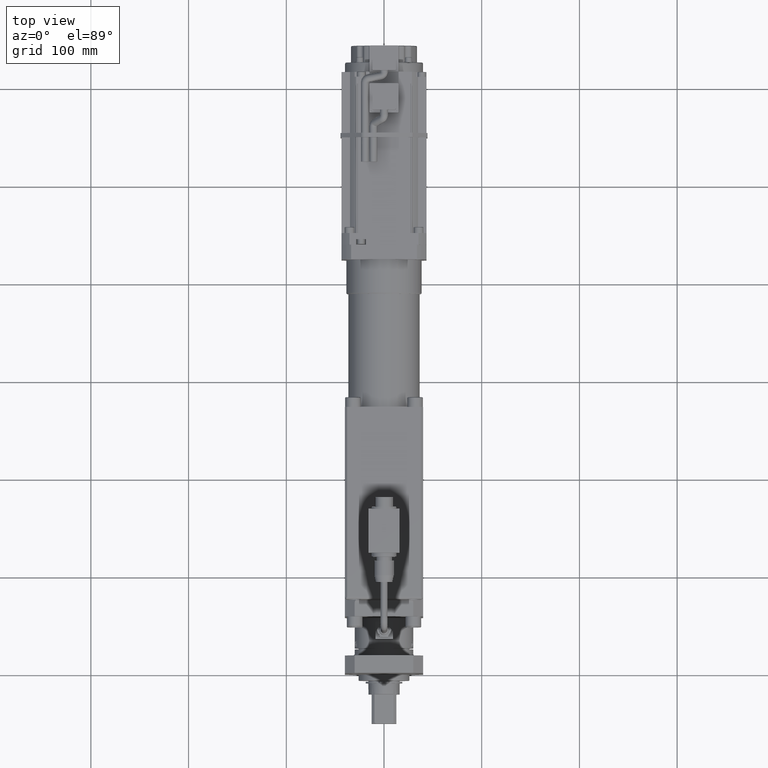
[diagram: clean part render]
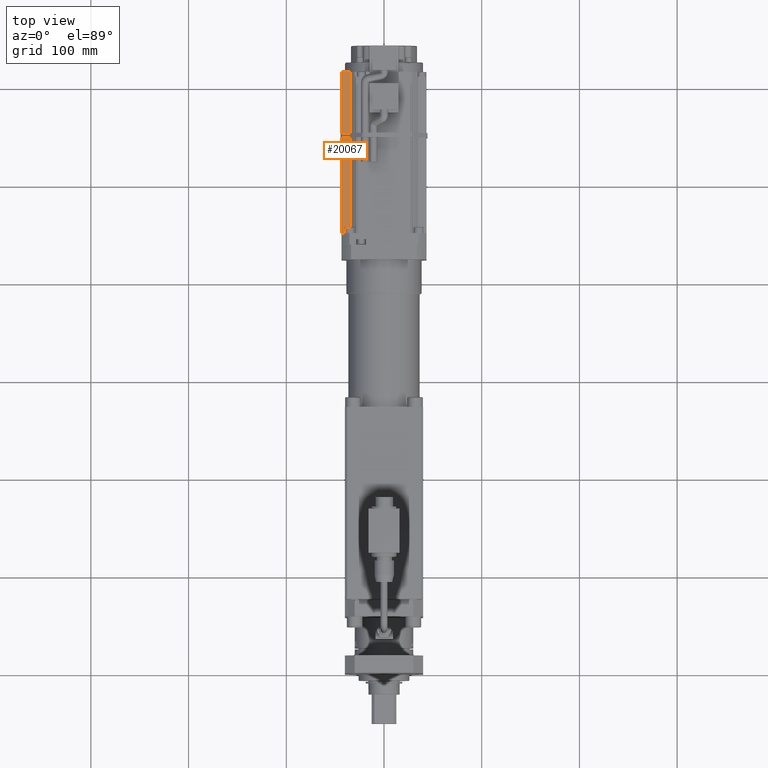
[diagram: same view with one face highlighted and labeled with its STEP entity id]
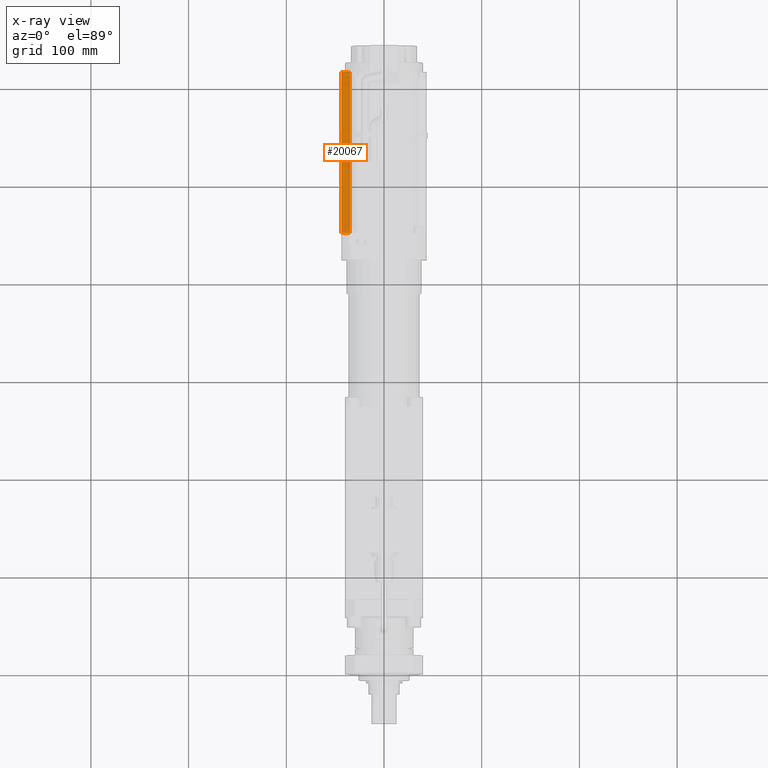
[diagram: x-ray of the same camera — body ghosted, the highlighted face saturated]
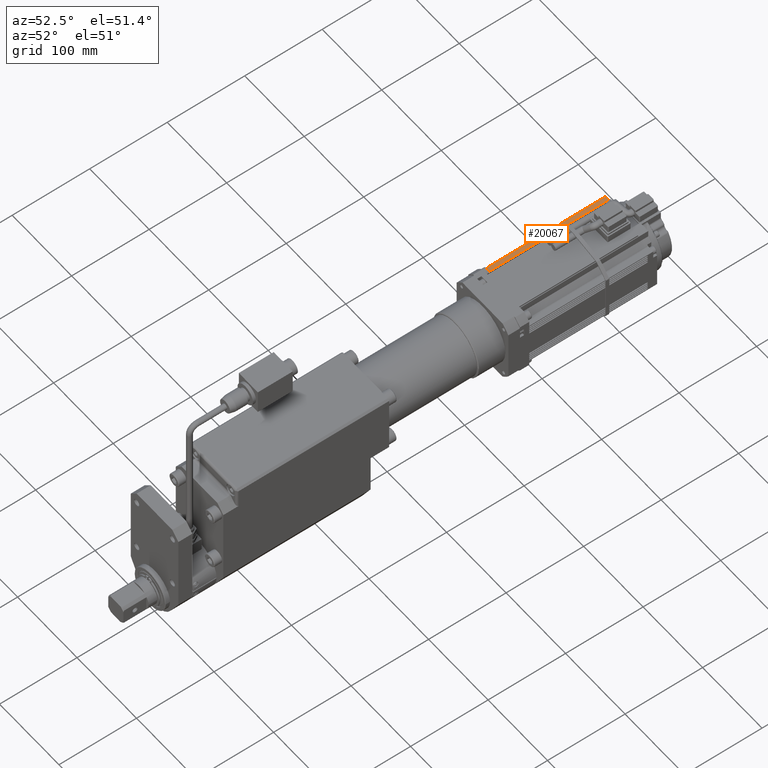
[diagram: same view with one face highlighted and labeled with its STEP entity id]
A machine part, top view. The second image highlights one B-rep face of the part: STEP entity #20067.
The next image is the same camera in x-ray: the body ghosted, the highlighted face saturated — about 0% of this face is hidden behind the body in this view.
A second angle (auxiliary view) of the same face is appended — the face is thin or edge-on in the first view.
In plain terms, the highlighted planar face has unit normal (0, -0, -1).
Its self-contained STEP definition (entity closure, byte-faithful):
#659=PLANE('',#22023);
#2341=FACE_OUTER_BOUND('',#3536,.T.);
#3536=EDGE_LOOP('',(#18092,#18093,#18094,#18095,#18096,#18097,#18098,#18099));
#5084=LINE('',#32692,#6842);
#5116=LINE('',#32768,#6874);
#6037=LINE('',#35434,#7795);
#6041=LINE('',#35440,#7799);
#6049=LINE('',#35450,#7807);
#6050=LINE('',#35452,#7808);
#6051=LINE('',#35453,#7809);
#6052=LINE('',#35454,#7810);
#6842=VECTOR('',#24804,10.);
#6874=VECTOR('',#24876,10.);
#7795=VECTOR('',#27427,10.);
#7799=VECTOR('',#27433,10.);
#7807=VECTOR('',#27443,10.);
#7808=VECTOR('',#27444,10.);
#7809=VECTOR('',#27445,10.);
#7810=VECTOR('',#27446,10.);
#8944=VERTEX_POINT('',#32689);
#8945=VERTEX_POINT('',#32691);
#8969=VERTEX_POINT('',#32766);
#9824=VERTEX_POINT('',#35431);
#9825=VERTEX_POINT('',#35433);
#9826=VERTEX_POINT('',#35438);
#9827=VERTEX_POINT('',#35449);
#9828=VERTEX_POINT('',#35451);
#11322=EDGE_CURVE('',#8944,#8945,#5084,.T.);
#11360=EDGE_CURVE('',#8969,#8944,#5116,.T.);
#12646=EDGE_CURVE('',#9824,#9825,#6037,.T.);
#12650=EDGE_CURVE('',#9826,#8969,#6041,.T.);
#12658=EDGE_CURVE('',#9826,#9827,#6049,.T.);
#12659=EDGE_CURVE('',#9827,#9828,#6050,.T.);
#12660=EDGE_CURVE('',#9828,#9825,#6051,.T.);
#12661=EDGE_CURVE('',#9824,#8945,#6052,.T.);
#18092=ORIENTED_EDGE('',*,*,#12658,.T.);
#18093=ORIENTED_EDGE('',*,*,#12659,.T.);
#18094=ORIENTED_EDGE('',*,*,#12660,.T.);
#18095=ORIENTED_EDGE('',*,*,#12646,.F.);
#18096=ORIENTED_EDGE('',*,*,#12661,.T.);
#18097=ORIENTED_EDGE('',*,*,#11322,.F.);
#18098=ORIENTED_EDGE('',*,*,#11360,.F.);
#18099=ORIENTED_EDGE('',*,*,#12650,.F.);
#20067=ADVANCED_FACE('',(#2341),#659,.F.);
#22023=AXIS2_PLACEMENT_3D('',#35448,#27441,#27442);
#24804=DIRECTION('',(3.9761577580382E-16,-1.,3.6304509555E-16));
#24876=DIRECTION('',(1.,3.97615775803822E-16,3.83026943495679E-15));
#27427=DIRECTION('',(-3.9761577580382E-16,1.,-3.6304509555E-16));
#27433=DIRECTION('',(-3.9761577580382E-16,1.,-3.6304509555E-16));
#27441=DIRECTION('center_axis',(3.83026943495679E-15,-3.63045095549998E-16,
-1.));
#27442=DIRECTION('ref_axis',(1.,3.97615775803822E-16,3.83026943495679E-15));
#27443=DIRECTION('',(1.,3.97615775803822E-16,3.83026943495679E-15));
#27444=DIRECTION('',(3.9761577580382E-16,-1.,3.6304509555E-16));
#27445=DIRECTION('',(-1.,-3.97615775803822E-16,-3.83026943495679E-15));
#27446=DIRECTION('',(1.,3.97615775803822E-16,3.83026943495679E-15));
#32689=CARTESIAN_POINT('',(-34.8245602987319,615.,126.85));
#32691=CARTESIAN_POINT('',(-34.8245602987318,450.,126.85));
#32692=CARTESIAN_POINT('',(-34.8245602987319,615.,126.85));
#32766=CARTESIAN_POINT('',(-43.5000000000002,615.,126.85));
#32768=CARTESIAN_POINT('',(-21.7500000000002,615.,126.85));
#35431=CARTESIAN_POINT('',(-43.5000000000001,450.,126.85));
#35433=CARTESIAN_POINT('',(-43.5000000000001,548.,126.85));
#35434=CARTESIAN_POINT('',(-43.5000000000001,526.5,126.85));
#35438=CARTESIAN_POINT('',(-43.5000000000001,552.5,126.85));
#35440=CARTESIAN_POINT('',(-43.5000000000001,526.5,126.85));
#35448=CARTESIAN_POINT('Origin',(-43.5000000000002,615.,126.85));
#35449=CARTESIAN_POINT('',(-43.4582575694957,552.5,126.85));
#35450=CARTESIAN_POINT('',(-21.7500000000001,552.5,126.85));
#35451=CARTESIAN_POINT('',(-43.4582575694957,548.,126.85));
#35452=CARTESIAN_POINT('',(-43.4582575694957,548.,126.85));
#35453=CARTESIAN_POINT('',(-21.7500000000001,548.,126.85));
#35454=CARTESIAN_POINT('',(-34.8245602987318,450.,126.85));